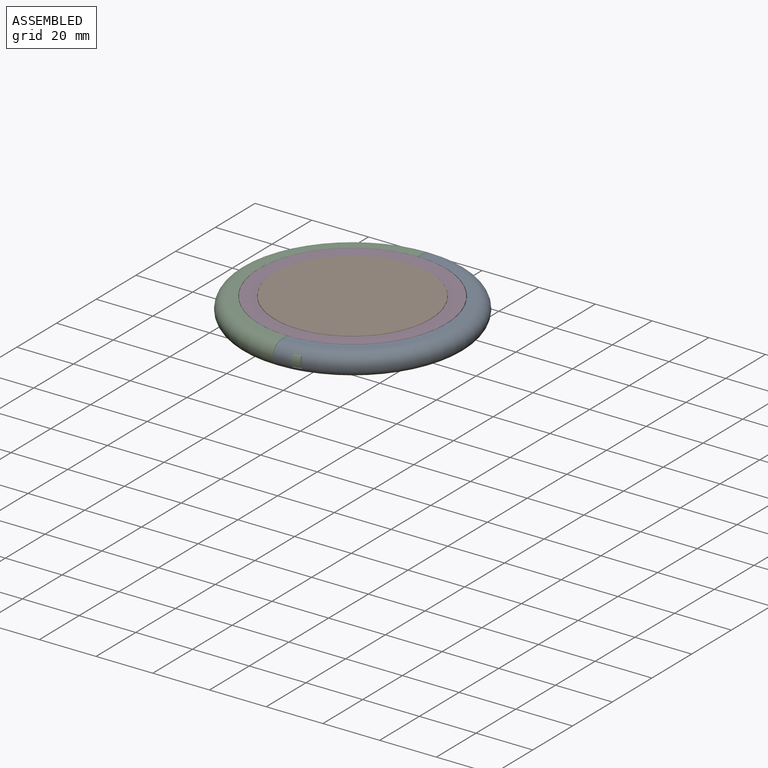
[diagram: assembled view]
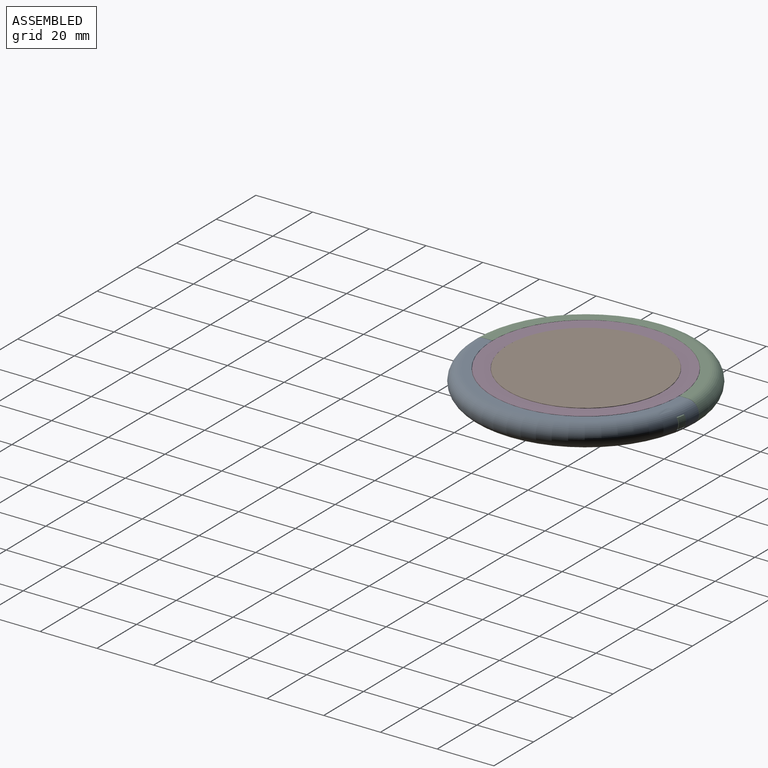
[diagram: assembled view, second angle]
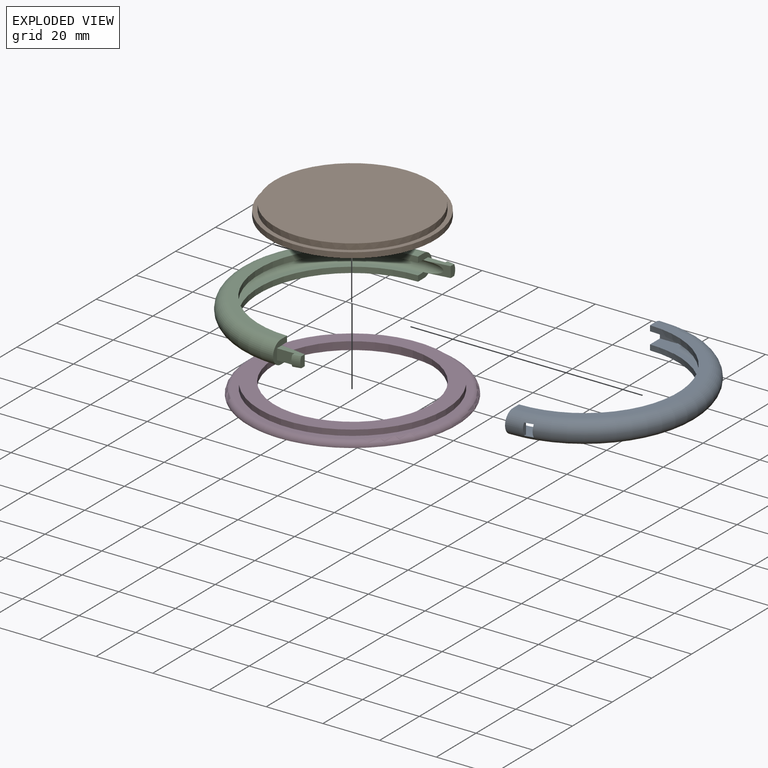
[diagram: exploded view]
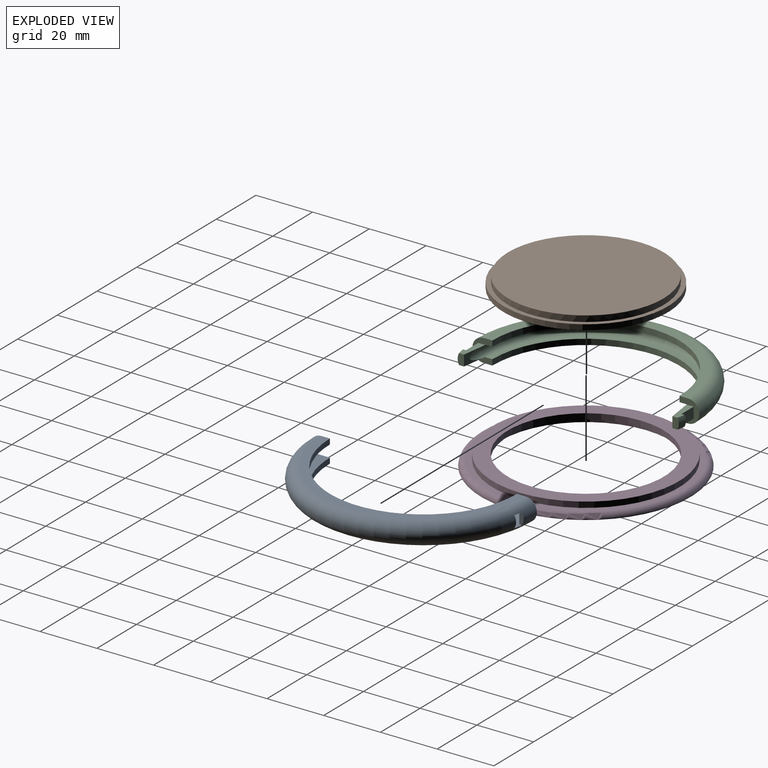
[diagram: exploded view, second angle]
ASSEMBLY  parts=4 mates=5
PART A: 20 faces, bbox 43.3x86.6x8 mm
  f0: torus R=36mm, axis (0,0,-1), area 1494.7mm2, adj f6,f7,f8,f9,f11,f12,f13,f14
  f1: cylinder r=33mm len=66mm, axis (0,0,-1), area 205.5mm2, adj f2,f6,f8,f9,f12,f13,f15,f17
  f2: plane 67.65x26mm, normal (0,0,-1), area 177.2mm2, adj f1,f3,f12,f15
  f3: torus R=35mm, axis (0,0,-1), area 601.7mm2, adj f2,f4,f12,f15
  f4: plane 67.65x26mm, normal (0,0,1), area 177.2mm2, adj f3,f5,f12,f15
  f5: cylinder r=33mm len=66mm, axis (0,0,-1), area 205.5mm2, adj f4,f6,f7,f9,f11,f12,f15,f16
  f6: plane 8x7mm, normal (-1,0,0), area 28.1mm2, adj f0,f1,f5,f7,f8,f10,f11,f13
  f7: plane 72x36mm, normal (0,0,-1), area 325.2mm2, adj f0,f5,f6,f9
  f8: plane 72x36mm, normal (0,0,1), area 325.2mm2, adj f0,f1,f6,f9
  f9: plane 8x7mm, normal (-1,0,0), area 28.1mm2, adj f0,f1,f5,f7,f8,f16,f17,f19
  f10: plane 6x4.2mm, normal (0,1,0), area 25.2mm2, adj f6,f11,f13,f14
  f11: plane 9x7.2mm, normal (0,0,1), area 50.7mm2, adj f0,f5,f6,f10,f12,f14
  f12: plane 7.23x4.21mm, normal (-1,0,0), area 14.7mm2, adj f0,f1,f2,f3,f4,f5,f11,f13
  f13: plane 9x7.2mm, normal (0,0,-1), area 50.7mm2, adj f0,f1,f6,f10,f12,f14
  f14: plane 4.21x1.55mm, normal (1,0,0), area 5.7mm2, adj f0,f10,f11,f13
  f15: plane 7.23x4.21mm, normal (-1,0,0), area 14.7mm2, adj f0,f1,f2,f3,f4,f5,f16,f17
  f16: plane 9x7.2mm, normal (0,0,1), area 50.7mm2, adj f0,f5,f9,f15,f18,f19
  f17: plane 9x7.2mm, normal (0,0,-1), area 50.7mm2, adj f0,f1,f9,f15,f18,f19
  f18: plane 4.21x1.55mm, normal (1,0,0), area 5.7mm2, adj f0,f16,f17,f19
  f19: plane 6x4.2mm, normal (0,-1,0), area 25.2mm2, adj f9,f16,f17,f18
PART B: 5 faces, bbox 58x58x4 mm
  f0: plane 58x58mm, normal (0,0,-1), area 2642.1mm2, adj f1
  f1: cylinder r=29mm len=58mm, axis (0,0,-1), area 346.2mm2, adj f0,f2
  f2: plane 58x58mm, normal (0,0,1), area 274.9mm2, adj f1,f3
  f3: cylinder r=27.45mm len=54.9mm, axis (0,0,-1), area 362.2mm2, adj f2,f4
  f4: plane 54.9x54.9mm, normal (0,0,1), area 2367.2mm2, adj f3
PART C: 24 faces, bbox 86.6x52.3x8 mm
  f0: torus R=36mm, axis (0,0,-1), area 1521.8mm2, adj f3,f4,f18,f19
  f1: torus R=36mm, axis (0,0,-1), area 11.3mm2, adj f7,f10,f22,f23
  f2: torus R=36mm, axis (0,0,-1), area 11.3mm2, adj f9,f12,f20,f21
  f3: plane 72x36mm, normal (0,0,-1), area 325.2mm2, adj f0,f17,f18,f19
  f4: plane 72x36mm, normal (0,0,1), area 325.2mm2, adj f0,f14,f18,f19
  f5: torus R=35mm, axis (0,0,-1), area 764.2mm2, adj f6,f8,f15,f16,f18,f19,f20,f21
  f6: plane 8.08x3.8mm, normal (0.99,-0.14,0), area 14.1mm2, adj f5,f7,f22,f23
  f7: plane 3.81x2.25mm, normal (0,-1,0), area 7.9mm2, adj f1,f6,f22,f23
  f8: plane 8.08x3.8mm, normal (-0.99,-0.14,0), area 14.1mm2, adj f5,f9,f20,f21
  f9: plane 3.81x2.25mm, normal (0,-1,0), area 7.9mm2, adj f2,f8,f20,f21
  f10: plane 3.81x1.53mm, normal (0,1,0), area 5.2mm2, adj f1,f11,f22,f23
  f11: plane 6.1x3.8mm, normal (-1,0,0), area 23.2mm2, adj f10,f18,f22,f23
  f12: plane 3.81x1.53mm, normal (0,1,0), area 5.2mm2, adj f2,f13,f20,f21
  f13: plane 6.1x3.8mm, normal (1,0,0), area 23.2mm2, adj f12,f19,f20,f21
  f14: cylinder r=33mm len=66mm, axis (0,0,-1), area 207.3mm2, adj f4,f15,f18,f19
  f15: plane 70x35mm, normal (0,0,-1), area 213.6mm2, adj f5,f14,f18,f19
  f16: plane 70x35mm, normal (0,0,1), area 213.6mm2, adj f5,f17,f18,f19
  f17: cylinder r=33mm len=66mm, axis (0,0,-1), area 207.3mm2, adj f3,f16,f18,f19
  f18: plane 8x7mm, normal (0,-1,0), area 29.6mm2, adj f0,f3,f4,f5,f11,f14,f15,f16
  f19: plane 8x7mm, normal (0,-1,0), area 29.6mm2, adj f0,f3,f4,f5,f13,f14,f15,f16
  f20: plane 8.9x3.43mm, normal (0,0,-1), area 18.9mm2, adj f2,f5,f8,f9,f12,f13,f19
  f21: plane 8.9x3.43mm, normal (0,0,1), area 18.9mm2, adj f2,f5,f8,f9,f12,f13,f19
  f22: plane 8.9x3.43mm, normal (0,0,-1), area 18.9mm2, adj f1,f5,f6,f7,f10,f11,f18
  f23: plane 8.9x3.43mm, normal (0,0,1), area 18.9mm2, adj f1,f5,f6,f7,f10,f11,f18
PART D: 8 faces, bbox 79.9x79.9x5.4 mm
  f0: cylinder r=30.1mm len=60.2mm, axis (0,0,-1), area 378.2mm2, adj f1,f6
  f1: plane 73.8x73.8mm, normal (0,0,-1), area 1431.3mm2, adj f0,f2
  f2: torus R=34.9mm, axis (0,0,-1), area 714mm2, adj f1,f3
  f3: plane 69.8x69.8mm, normal (0,0,1), area 426mm2, adj f2,f4
  f4: cylinder r=32.9mm len=65.8mm, axis (0,0,-1), area 413.4mm2, adj f3,f5
  f5: plane 65.8x65.8mm, normal (0,0,1), area 1016mm2, adj f4,f7
  f6: plane 60.2x60.2mm, normal (0,0,-1), area 461.8mm2, adj f0,f7
  f7: cylinder r=27.55mm len=55.1mm, axis (0,0,-1), area 346.2mm2, adj f5,f6
PLACE A t=(0.04,6.37,-7.79)mm
PLACE B t=(-0.06,6.37,-7.69)mm
PLACE C rot(axis=(0,0,1),90deg) t=(-0.06,6.37,-7.79)mm
PLACE D t=(-0.06,6.37,-7.79)mm
MATE cylindrical D.f7 <-> B.f3  axis (0,0,-1) through (-0.06,6.37,-4.79)mm
MATE planar B.f1 <-> D.f0  axis (0,0,1) through (-0.06,6.37,-5.79)mm
MATE planar C.f11 <-> A.f10  axis (0,-1,0) through (2.99,-31.63,-7.79)mm
MATE planar C.f10 <-> A.f14  axis (-1,0,0) through (6.04,-32.32,-7.79)mm
MATE cylindrical D.f0 <-> C.f0  axis (0,0,-1) through (-0.06,6.37,-4.79)mm
